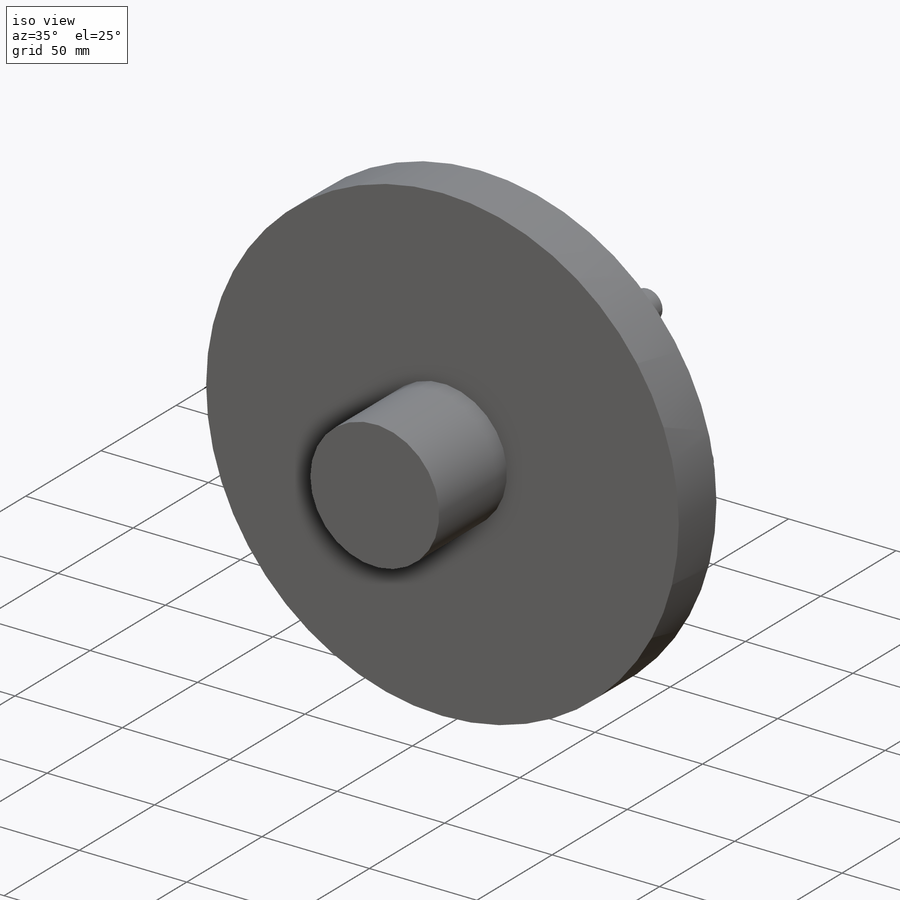
[diagram: iso view]
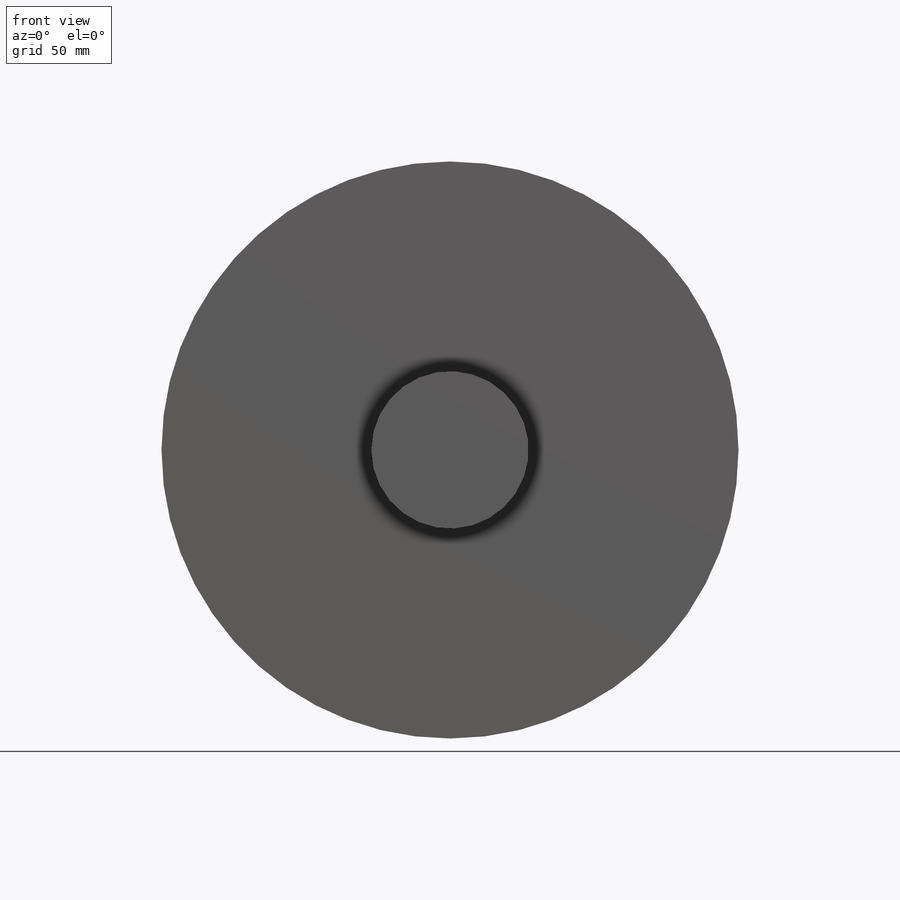
[diagram: front view]
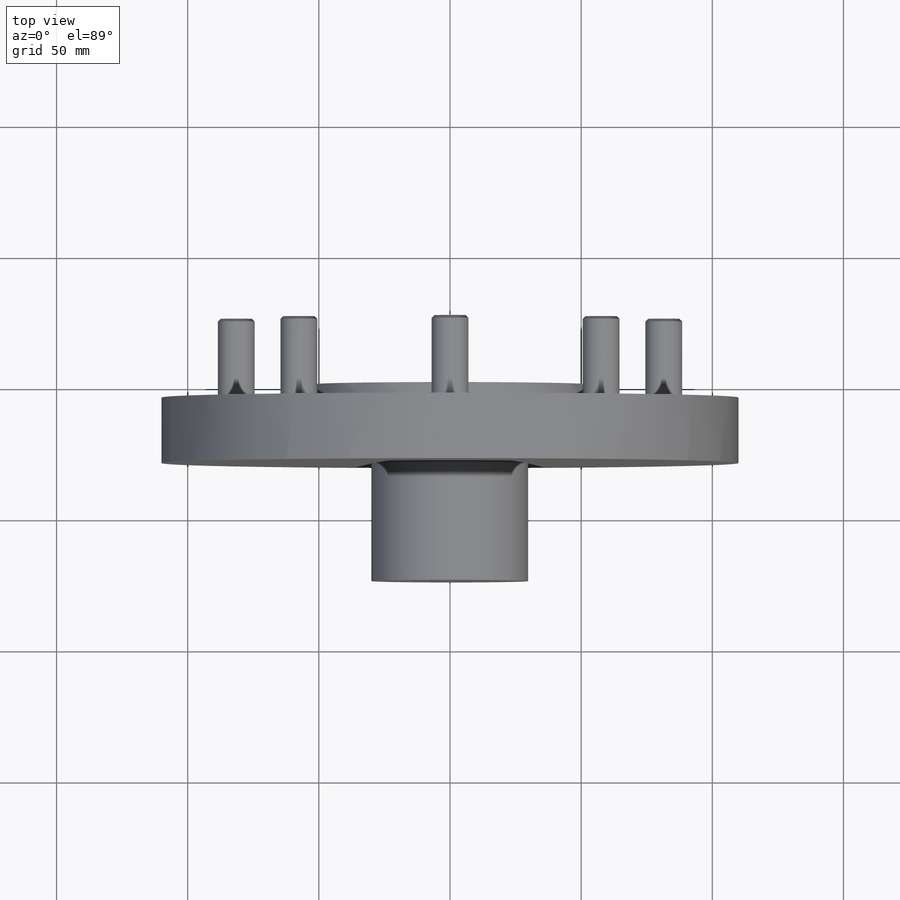
[diagram: top view]
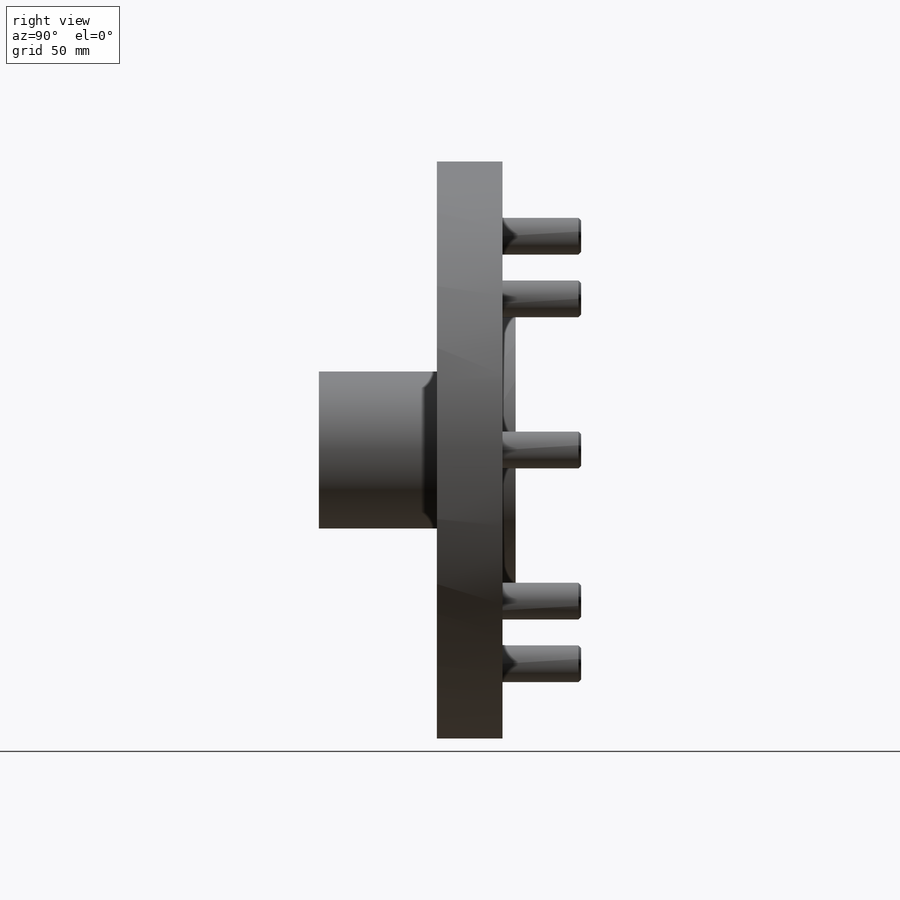
[diagram: right view]
SOLIDWORKS PART (.sldprt)
format: sldprt  version: not decoded by parser v0  size: 144,896 bytes
history: native  units: mm
features: sketch x2, material x1, revolve x1, extrude x1, chamfer x1 (+13 scaffold rows collapsed)
feature tree (19):
  scaffold x13  (default folders/planes/origin — collapsed)
  material  "Material <not specified>"
  sketch  "Sketch6"  dims[D1=75.0mm D2=53.0mm D3=30.0mm D4=45.0mm D5=25.0mm D6=57.0mm]
  revolve  "Revolve2"  Angle=360deg
  sketch  "Sketch7"  dims[D2=14.0mm D1=81.5mm D3=8.0]
  extrude  "Boss-Extrude2"  Depth=30mm
  chamfer  "Chamfer2"  Distance=1mm
decode coverage: 5 of 5 modeling features carry decoded parameters
note: suppression state not decoded; provenance and decode notes live in map.json
